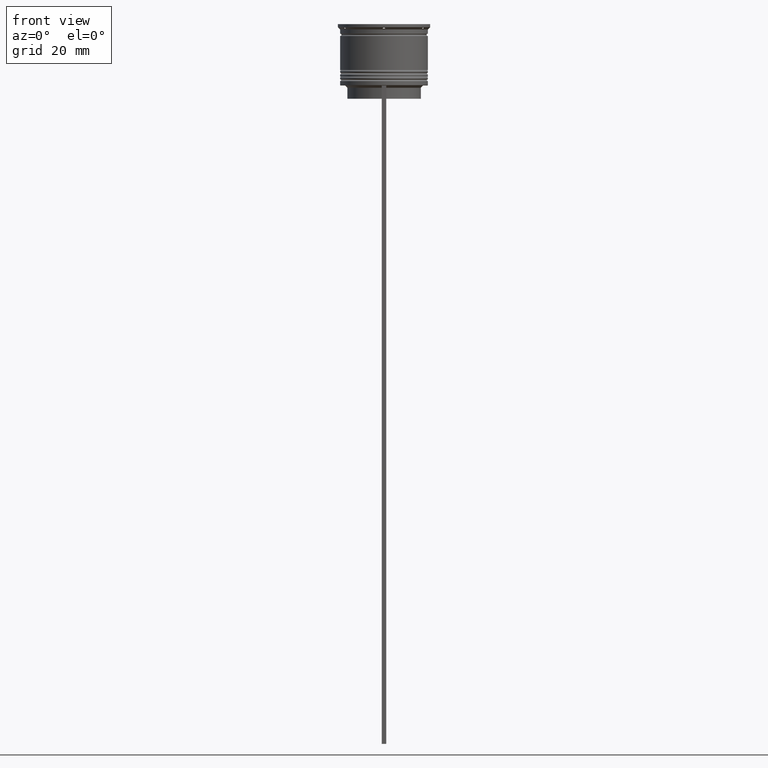
[diagram: clean part render]
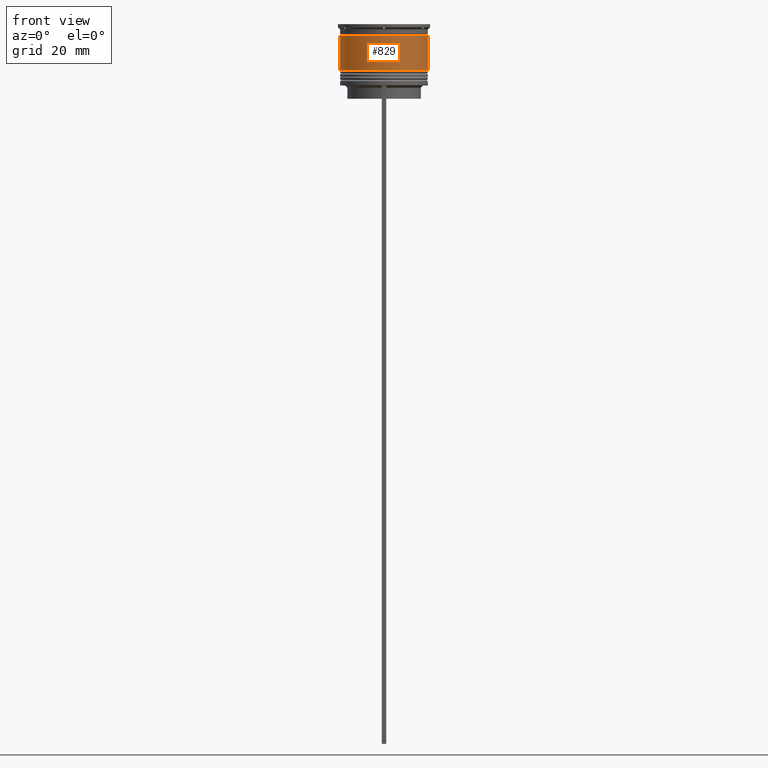
[diagram: same view with one face highlighted and labeled with its STEP entity id]
A machine part, front view. The second image highlights one B-rep face of the part: STEP entity #829.
In plain terms, the highlighted cylindrical surface (partial cylindrical patch) has radius 10 mm, axis along (-0, -0, 1).
Its self-contained STEP definition (entity closure, byte-faithful):
#59 = AXIS2_PLACEMENT_3D ( 'NONE', #2366, #93, #2534 ) ;
#93 = DIRECTION ( 'NONE',  ( -0.000000000000000000, -0.000000000000000000, 1.000000000000000000 ) ) ;
#123 = VERTEX_POINT ( 'NONE', #264 ) ;
#233 = AXIS2_PLACEMENT_3D ( 'NONE', #1756, #310, #935 ) ;
#257 = EDGE_CURVE ( 'NONE', #1051, #485, #2092, .T. ) ;
#264 = CARTESIAN_POINT ( 'NONE',  ( -9.999999999999998224, 1.224646799147353256E-15, -2.700000000000001954 ) ) ;
#310 = DIRECTION ( 'NONE',  ( -0.000000000000000000, -0.000000000000000000, 1.000000000000000000 ) ) ;
#403 = ORIENTED_EDGE ( 'NONE', *, *, #2352, .F. ) ;
#485 = VERTEX_POINT ( 'NONE', #2664 ) ;
#524 = LINE ( 'NONE', #2191, #1901 ) ;
#535 = ORIENTED_EDGE ( 'NONE', *, *, #257, .T. ) ;
#829 = ADVANCED_FACE ( 'NONE', ( #1352 ), #2140, .T. ) ;
#862 = AXIS2_PLACEMENT_3D ( 'NONE', #1603, #1559, #1142 ) ;
#935 = DIRECTION ( 'NONE',  ( 1.000000000000000000, 0.000000000000000000, 0.000000000000000000 ) ) ;
#1022 = EDGE_CURVE ( 'NONE', #1051, #123, #2493, .T. ) ;
#1051 = VERTEX_POINT ( 'NONE', #1110 ) ;
#1110 = CARTESIAN_POINT ( 'NONE',  ( -10.00000000000000178, 1.224646799147353454E-15, -10.50000000000000000 ) ) ;
#1142 = DIRECTION ( 'NONE',  ( 1.000000000000000000, 0.000000000000000000, 0.000000000000000000 ) ) ;
#1250 = CARTESIAN_POINT ( 'NONE',  ( -10.00000000000000000, 1.224646799147353256E-15, 0.000000000000000000 ) ) ;
#1274 = EDGE_LOOP ( 'NONE', ( #2657, #535, #1608, #403 ) ) ;
#1352 = FACE_OUTER_BOUND ( 'NONE', #1274, .T. ) ;
#1399 = DIRECTION ( 'NONE',  ( -0.000000000000000000, -0.000000000000000000, 1.000000000000000000 ) ) ;
#1559 = DIRECTION ( 'NONE',  ( -0.000000000000000000, -0.000000000000000000, 1.000000000000000000 ) ) ;
#1603 = CARTESIAN_POINT ( 'NONE',  ( 0.000000000000000000, 0.000000000000000000, -2.700000000000001954 ) ) ;
#1608 = ORIENTED_EDGE ( 'NONE', *, *, #2671, .T. ) ;
#1609 = CIRCLE ( 'NONE', #862, 9.999999999999998224 ) ;
#1756 = CARTESIAN_POINT ( 'NONE',  ( 0.000000000000000000, 0.000000000000000000, -10.50000000000000000 ) ) ;
#1758 = VERTEX_POINT ( 'NONE', #2071 ) ;
#1901 = VECTOR ( 'NONE', #2598, 1000.000000000000000 ) ;
#1968 = VECTOR ( 'NONE', #1399, 1000.000000000000000 ) ;
#2071 = CARTESIAN_POINT ( 'NONE',  ( 9.999999999999998224, 0.000000000000000000, -2.700000000000001954 ) ) ;
#2092 = CIRCLE ( 'NONE', #233, 10.00000000000000178 ) ;
#2140 = CYLINDRICAL_SURFACE ( 'NONE', #59, 10.00000000000000000 ) ;
#2191 = CARTESIAN_POINT ( 'NONE',  ( 10.00000000000000000, 0.000000000000000000, 0.000000000000000000 ) ) ;
#2352 = EDGE_CURVE ( 'NONE', #123, #1758, #1609, .T. ) ;
#2366 = CARTESIAN_POINT ( 'NONE',  ( 0.000000000000000000, 0.000000000000000000, 0.000000000000000000 ) ) ;
#2493 = LINE ( 'NONE', #1250, #1968 ) ;
#2534 = DIRECTION ( 'NONE',  ( 1.000000000000000000, 0.000000000000000000, 0.000000000000000000 ) ) ;
#2598 = DIRECTION ( 'NONE',  ( -0.000000000000000000, -0.000000000000000000, 1.000000000000000000 ) ) ;
#2657 = ORIENTED_EDGE ( 'NONE', *, *, #1022, .F. ) ;
#2664 = CARTESIAN_POINT ( 'NONE',  ( 10.00000000000000178, 0.000000000000000000, -10.50000000000000000 ) ) ;
#2671 = EDGE_CURVE ( 'NONE', #485, #1758, #524, .T. ) ;